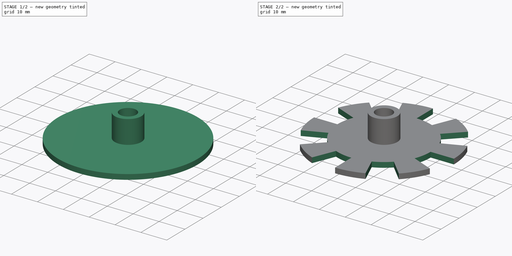
[diagram: build sequence overview — one tinted view per stage of 2, left to right]
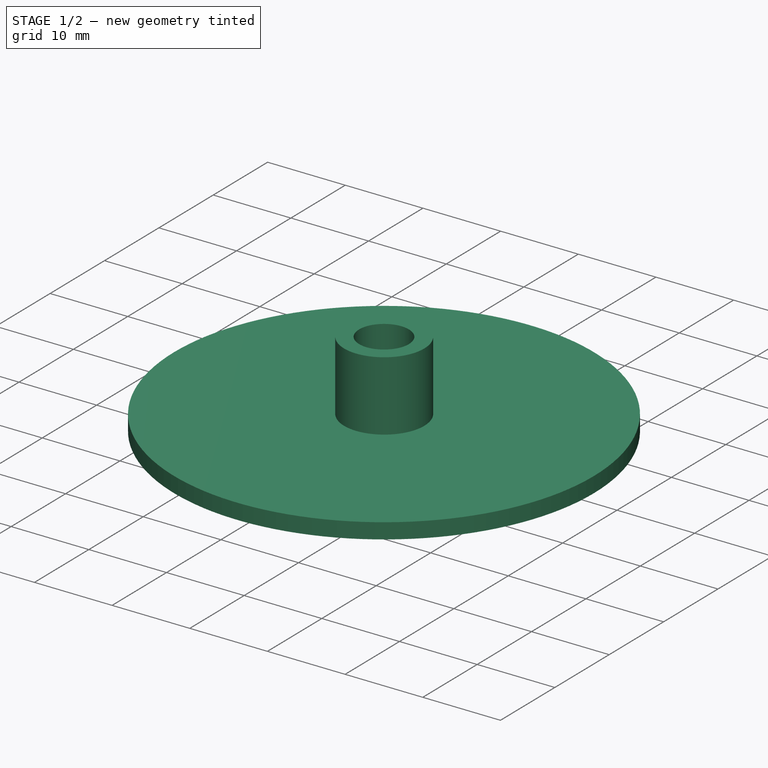
[diagram: stage 1 of 2 — iso view after this stage's code; geometry added in this stage tinted green]
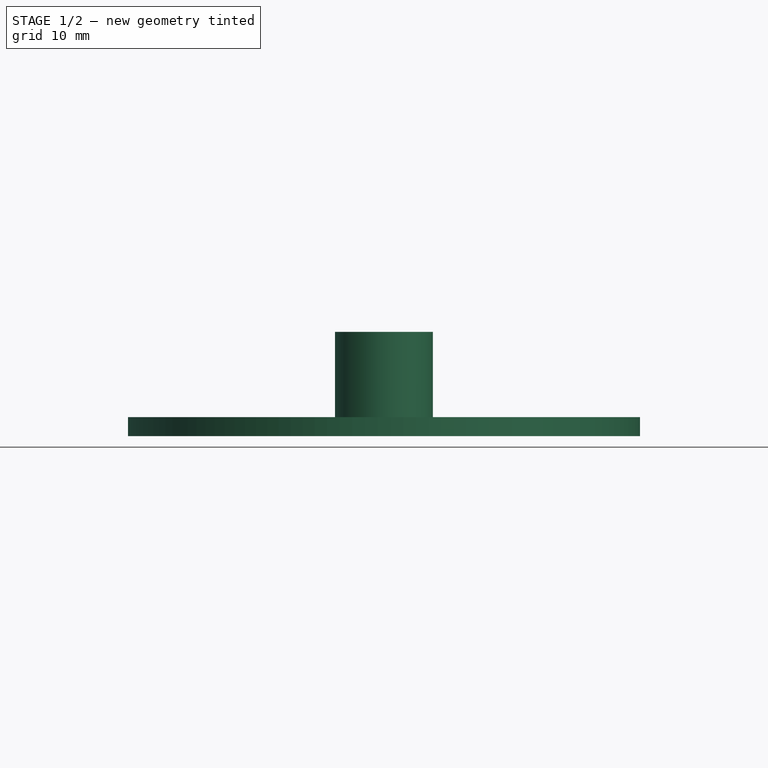
[diagram: stage 1 of 2 — front view after this stage's code; geometry added in this stage tinted green]
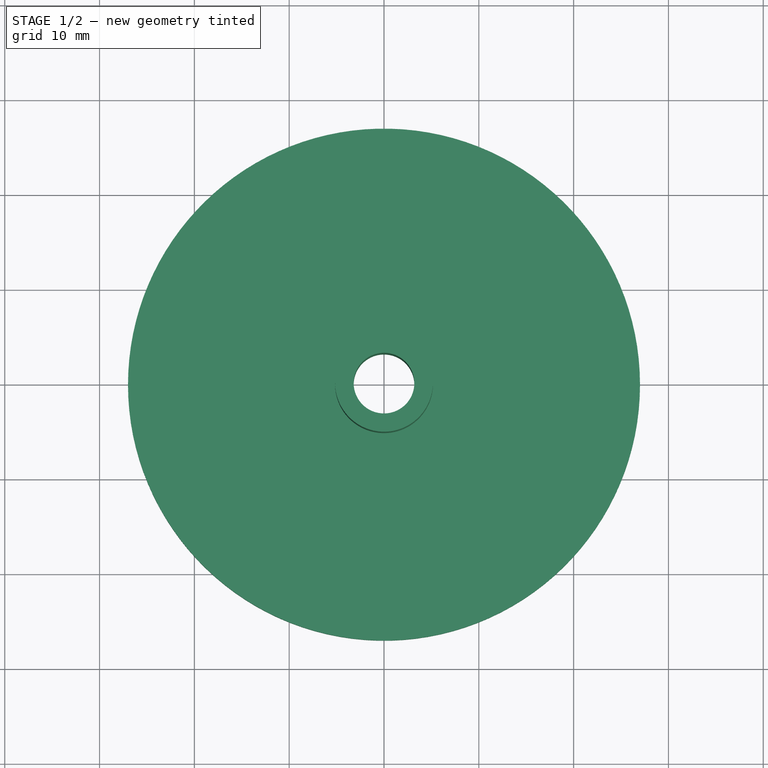
[diagram: stage 1 of 2 — top view after this stage's code; geometry added in this stage tinted green]
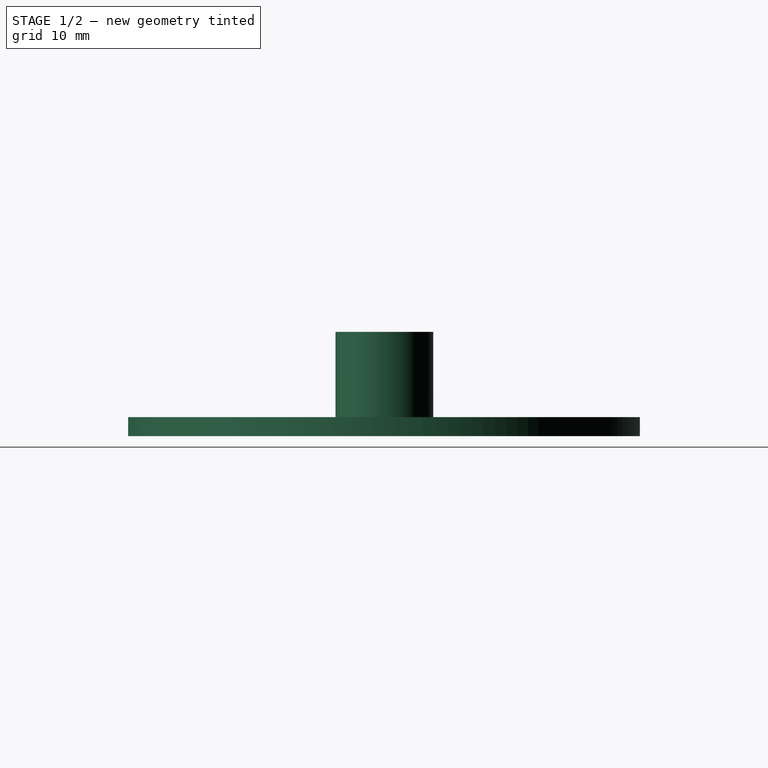
[diagram: stage 1 of 2 — right view after this stage's code; geometry added in this stage tinted green]
FCSTD DOCUMENT  (FreeCAD 0.17R13541 (Git))
Label: acolock_counter
License: All rights reserved
LicenseURL: http://en.wikipedia.org/wiki/All_rights_reserved
objects: Sketcher::SketchObject×4, PartDesign::Pad×2, PartDesign::Pocket×1, PartDesign::Plane×1, PartDesign::PolarPattern×1, Spreadsheet::Sheet×1, PartDesign::Body×1
note: 13 computed .brp shape members not serialized (recipe doc carries the construction recipe); baked Part::Feature solids carry a one-line shape summary decoded from their .brp

FEATURE [Sketcher::SketchObject] Sketch
  MapMode = 5
  Support = -> [XY_Plane]
  sketch-geometry (2):
    g0: Circle CenterX=0 CenterY=0 CenterZ=0 NormalX=0 NormalY=0 NormalZ=1 AngleXU=0 Radius=27
    g1: Circle CenterX=0 CenterY=0 CenterZ=0 NormalX=0 NormalY=0 NormalZ=1 AngleXU=0 Radius=3.2
  constraints (4):
    c: Radius(g0) = 27
    c: Radius(g1) = 3.2
    c: Coincident(g1,g-1)
    c: Coincident(g0,g-1)
FEATURE [PartDesign::Pad] Pad
  Length = 2
  Length2 = 100
  Profile = -> Sketch
  Type = 0
FEATURE [Sketcher::SketchObject] Sketch001
  ExternalGeometry = -> [Pad]
  MapMode = 5
  Placement = pos=(0,0,2) rot=(0,0,1;0rad)
  Support = -> [Pad]
  sketch-geometry (3):
    g0: Circle CenterX=0 CenterY=0 CenterZ=0 NormalX=0 NormalY=0 NormalZ=1 AngleXU=0 Radius=3.2
    g1: Circle CenterX=-8.58599e-05 CenterY=0.0386849 CenterZ=0 NormalX=0 NormalY=0 NormalZ=1 AngleXU=0 Radius=5.16132
    g2: LineSegment [constr] StartX=0 StartY=3.2 StartZ=0 EndX=0 EndY=5.2 EndZ=0
  constraints (7):
    c: Equal(g0,g-3)
    c: PointOnObject(g2,g1)
    c: PointOnObject(g2,g0)
    c: Vertical(g2)
    c: PointOnObject(g2,g-2)
    c: Distance(g2) = 2
    c: Coincident(g0,g-1)
FEATURE [PartDesign::Pad] Pad001
  BaseFeature = -> Pad
  Length = 9
  Length2 = 100
  Profile = -> Sketch001
  Type = 0
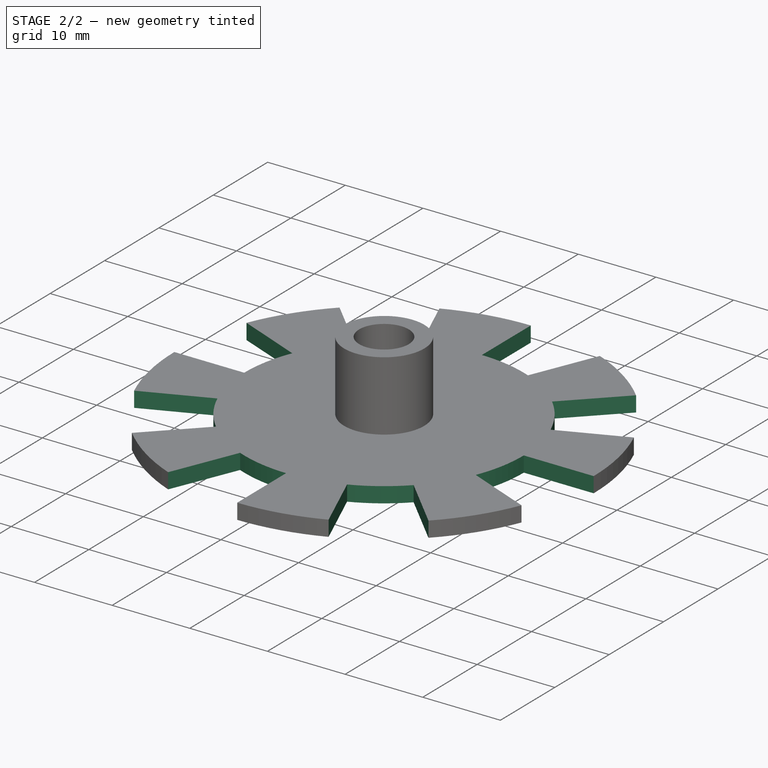
[diagram: stage 2 of 2 — iso view after this stage's code; geometry added in this stage tinted green]
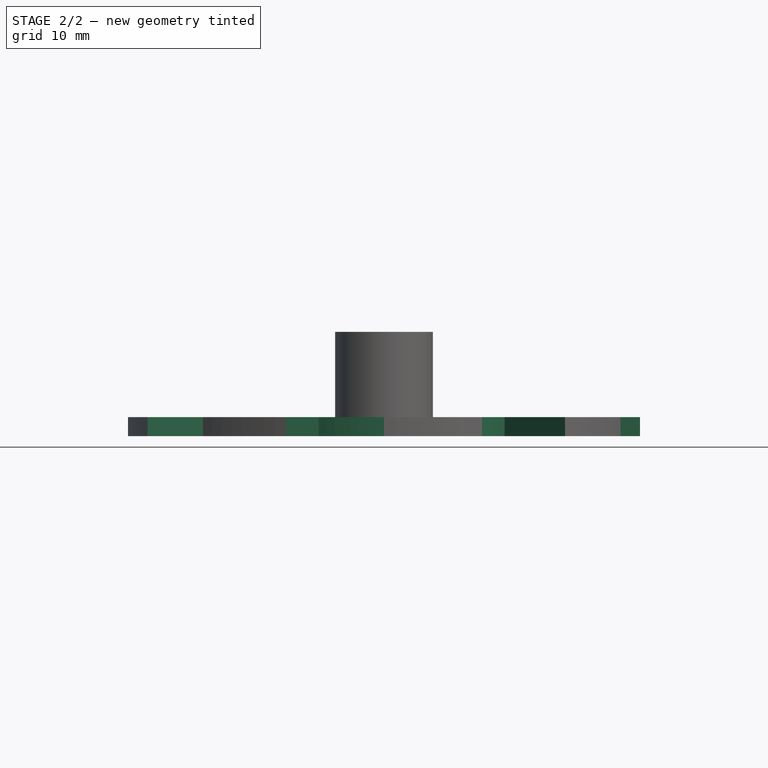
[diagram: stage 2 of 2 — front view after this stage's code; geometry added in this stage tinted green]
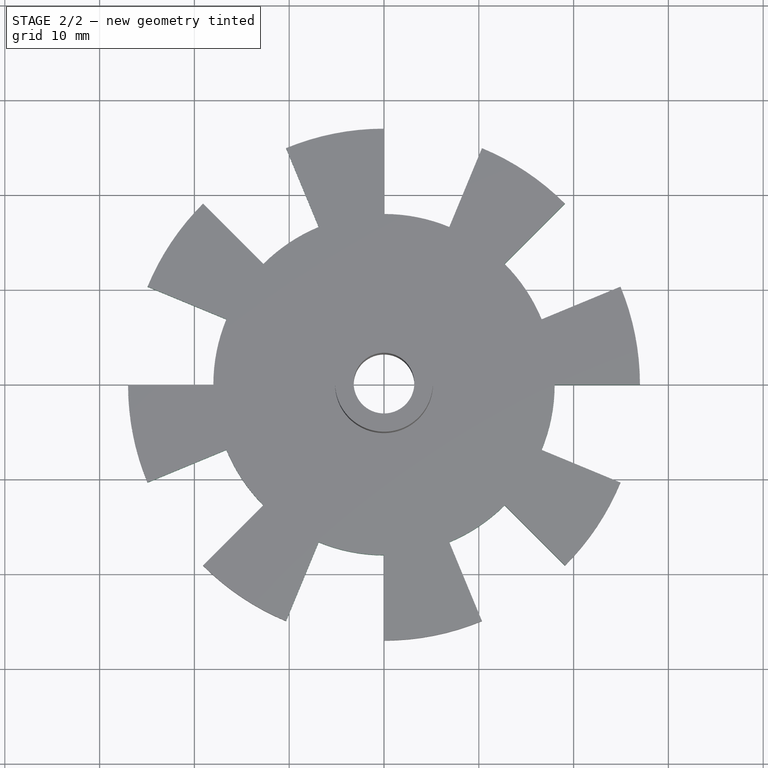
[diagram: stage 2 of 2 — top view after this stage's code; geometry added in this stage tinted green]
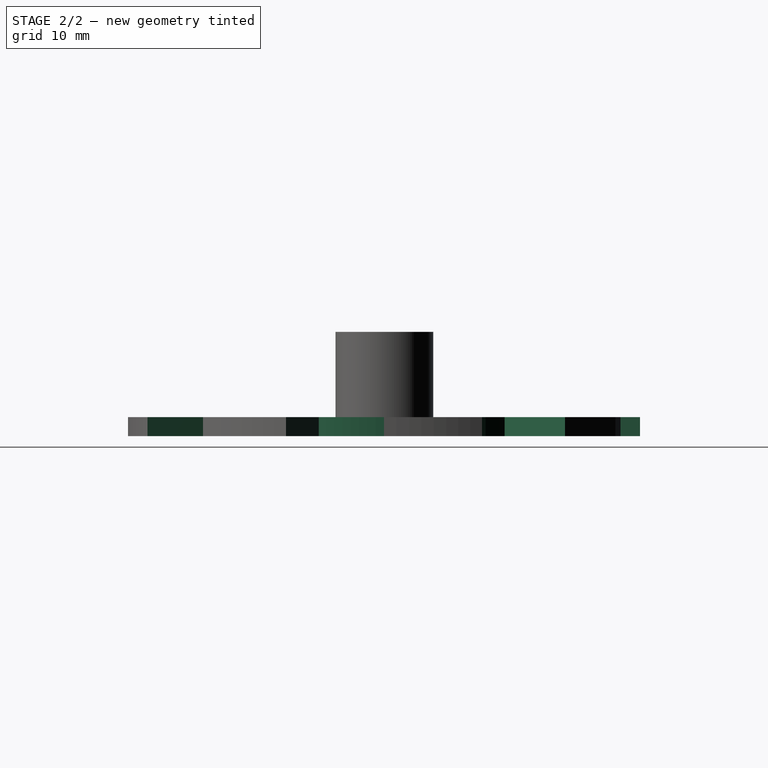
[diagram: stage 2 of 2 — right view after this stage's code; geometry added in this stage tinted green]
FEATURE [Sketcher::SketchObject] Sketch002
  ExternalGeometry = -> [Pad001]
  MapMode = 5
  Placement = pos=(0,0,2) rot=(0,0,1;0rad)
  Support = -> [Pad001]
  expr: Constraints[9] = 360 / Spreadsheet.count / 2
  sketch-geometry (5):
    g0: LineSegment StartX=0 StartY=32.0439 StartZ=0 EndX=0 EndY=18 EndZ=0
    g1: LineSegment StartX=6.8883 StartY=16.6298 StartZ=0 EndX=12.2627 EndY=29.6047 EndZ=0
    g2: ArcOfCircle CenterX=0 CenterY=0 CenterZ=0 NormalX=0 NormalY=0 NormalZ=1 AngleXU=0 Radius=18 StartAngle=1.1781 EndAngle=1.5708
    g3: LineSegment StartX=0 StartY=32.0439 StartZ=0 EndX=12.2627 EndY=29.6047 EndZ=0
    g4: LineSegment [constr] StartX=6.8883 StartY=16.6298 StartZ=0 EndX=0 EndY=0 EndZ=0
  constraints (13):
    c: Vertical(g0)
    c: Coincident(g0,g2)
    c: Coincident(g1,g3)
    c: Coincident(g0,g3)
    c: Coincident(g2,g-1)
    c: Coincident(g1,g2)
    c: PointOnObject(g0,g-2)
    c: Equal(g1,g0)
    c: DistanceY(g-1,g0) = 18
    c: Angle(g1,g0) = 0.392699
    c: Parallel(g4,g1)
    c: Coincident(g1,g4)
    c: Coincident(g4,g-1)
FEATURE [PartDesign::Pocket] Pocket
  BaseFeature = -> Pad001
  Length = 5
  Length2 = 100
  Profile = -> Sketch002
  Type = 1
FEATURE [PartDesign::Plane] DatumPlane
  AttachmentOffset = pos=(0,0,0) rot=(0.999911,0.012341,-0.005112;2.3561rad)
  MapMode = 4
  Placement = pos=(0,0,0) rot=(-0.369362,0.861672,-0.347984;4.57418rad)
  Support = -> [YZ_Plane]
FEATURE [PartDesign::PolarPattern] PolarPattern
  Angle = 360
  Axis = -> Sketch002 [N_Axis]
  BaseFeature = -> Pocket
  Occurrences = 8
  Originals = -> [Pocket]
  expr: Occurrences = Spreadsheet.count
FEATURE [Spreadsheet::Sheet] Spreadsheet
  cells = A1=count; B1(count)=8
FEATURE [Sketcher::SketchObject] Sketch003
  MapMode = 5
  Placement = pos=(0,0,2) rot=(0,0,1;0rad)
  Support = -> [PolarPattern]
  sketch-geometry (2):
    g0: Circle CenterX=0 CenterY=0 CenterZ=0 NormalX=0 NormalY=0 NormalZ=1 AngleXU=0 Radius=6.95557
    g1: Circle CenterX=0 CenterY=0 CenterZ=0 NormalX=0 NormalY=0 NormalZ=1 AngleXU=0 Radius=37.4124
FEATURE [PartDesign::Body] Body
  Group = -> [Sketch,Pad,Sketch001,Pad001,Sketch002,Pocket,DatumPlane,PolarPattern,Sketch003]
  Origin = -> Origin
  Tip = -> PolarPattern
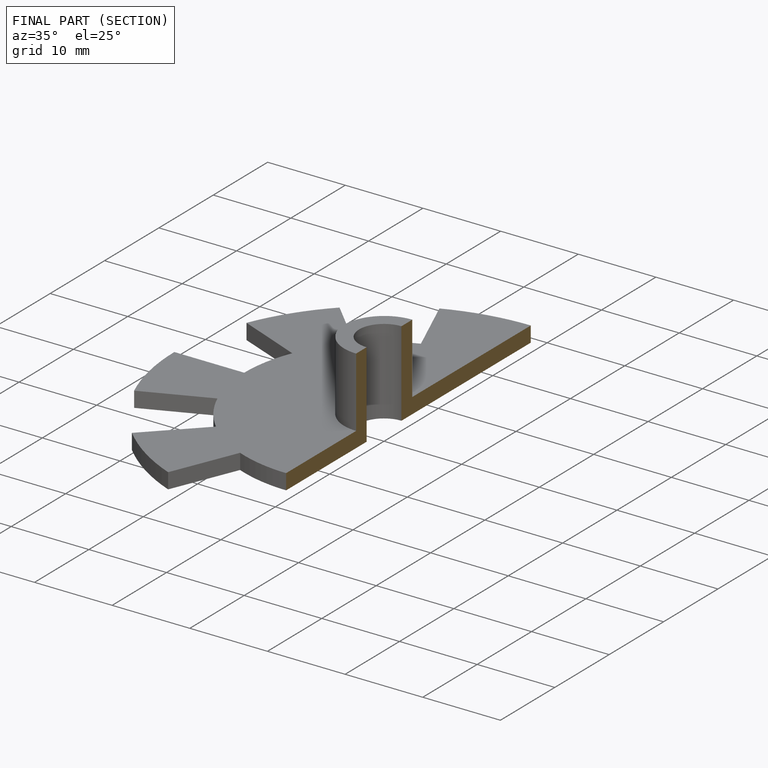
[diagram: finished part — half-section view (interior)]
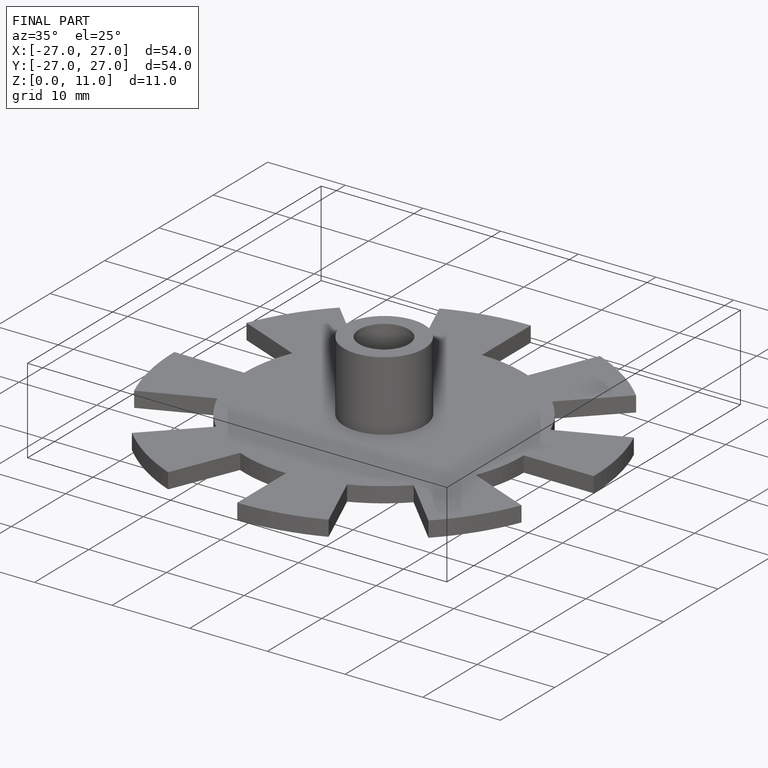
[diagram: finished part — iso view with bounding-box wireframe]
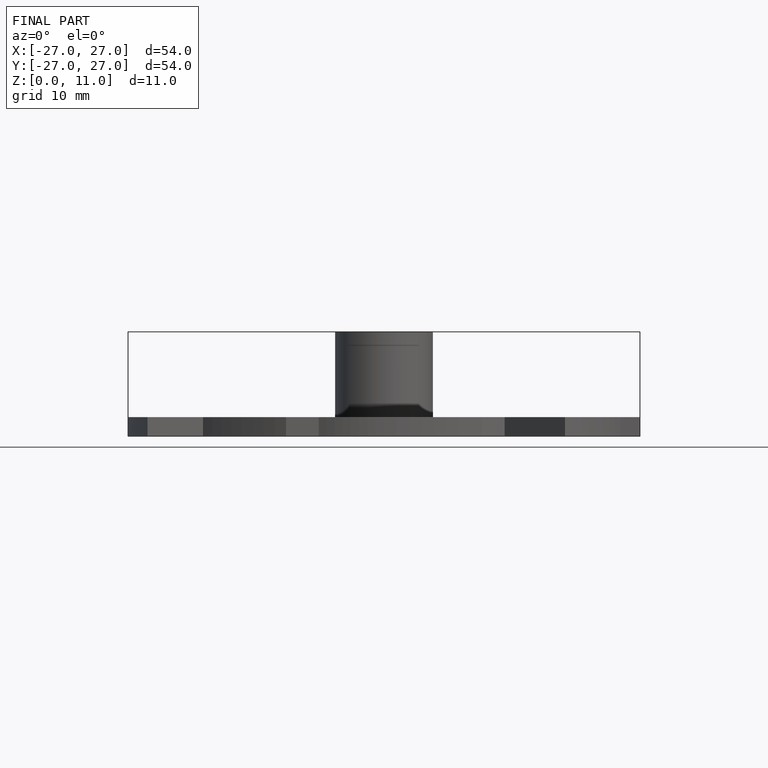
[diagram: finished part — front view with bounding-box wireframe]
